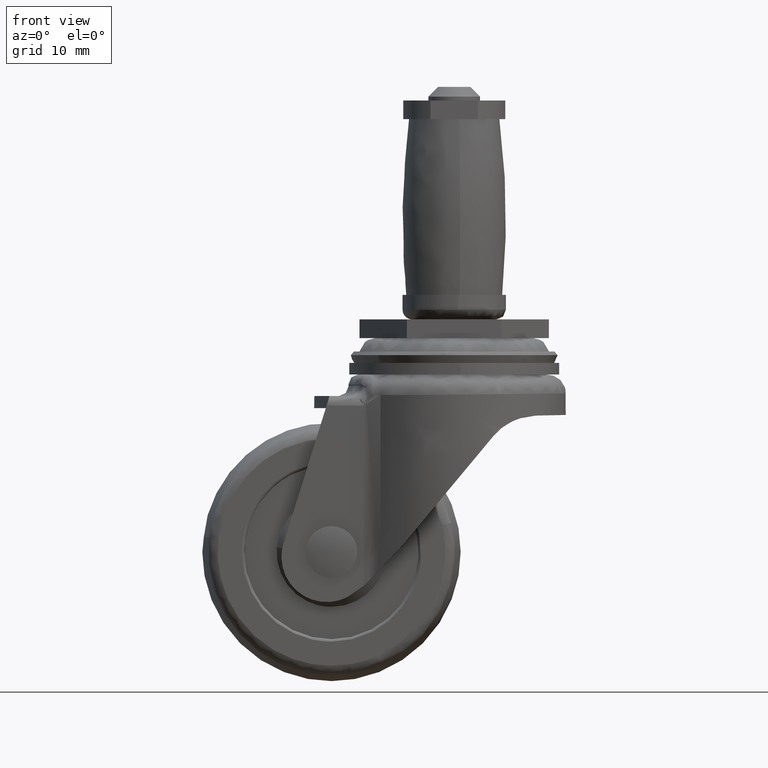
[diagram: clean part render]
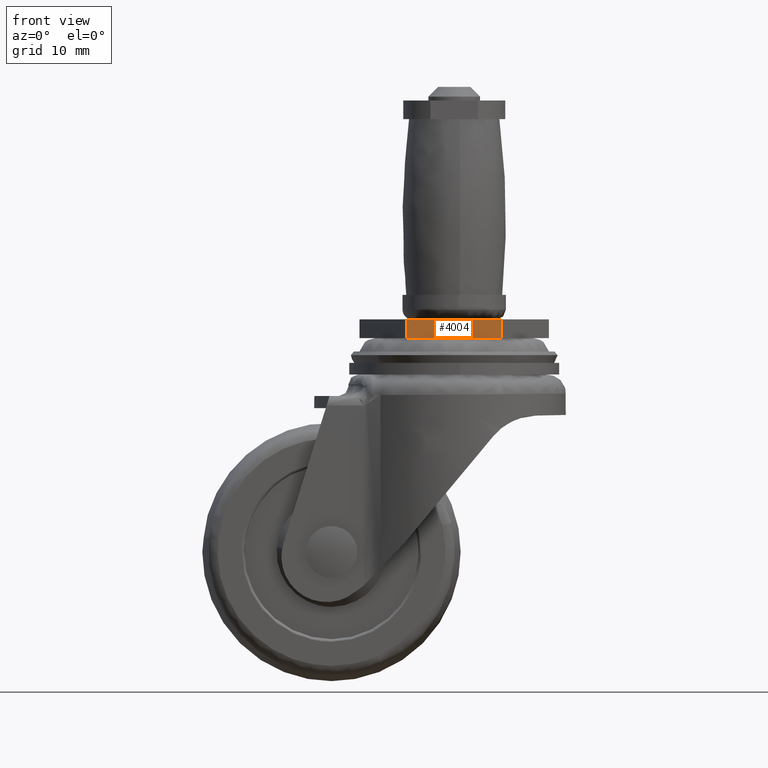
[diagram: same view with one face highlighted and labeled with its STEP entity id]
A machine part, front view. The second image highlights one B-rep face of the part: STEP entity #4004.
In plain terms, the highlighted face is a freeform B-spline surface patch.
Its self-contained STEP definition (entity closure, byte-faithful):
#3954=CARTESIAN_POINT('',(7.330000000000000,-12.695932000000139,0.0));
#3955=VERTEX_POINT('',#3954);
#3961=CARTESIAN_POINT('',(7.330000000000000,-12.695932000000139,-2.899989000000000));
#3962=VERTEX_POINT('',#3961);
#3963=CARTESIAN_POINT('',(7.330000000000000,-12.695932000000139,-2.899989000000000));
#3964=CARTESIAN_POINT('',(7.330000000000000,-12.695932000000139,0.0));
#3965=QUASI_UNIFORM_CURVE('',1,(#3963,#3964),.UNSPECIFIED.,.F.,.U.);
#3966=EDGE_CURVE('',#3962,#3955,#3965,.T.);
#3977=CARTESIAN_POINT('',(-8.062266971586077,-12.695932000000139,0.144854434568461));
#3978=CARTESIAN_POINT('',(-8.062266971586077,-12.695932000000139,-3.044843304928851));
#3979=CARTESIAN_POINT('',(8.062267364797917,-12.695932000000139,0.144854434568461));
#3980=CARTESIAN_POINT('',(8.062267364797917,-12.695932000000139,-3.044843304928851));
#3981=B_SPLINE_SURFACE_WITH_KNOTS('',1,1,((#3977,#3979),(#3978,#3980)),.UNSPECIFIED.,.F.,.F.,.U.,(2,2),(2,2),(0.0,3.189697739497312),(0.0,16.124534336383999),.UNSPECIFIED.);
#3982=CARTESIAN_POINT('',(-7.330000000000000,-12.695932000000139,0.0));
#3983=VERTEX_POINT('',#3982);
#3984=CARTESIAN_POINT('',(-7.330000000000000,-12.695932000000139,0.0));
#3985=CARTESIAN_POINT('',(7.330000000000000,-12.695932000000139,0.0));
#3986=QUASI_UNIFORM_CURVE('',1,(#3984,#3985),.UNSPECIFIED.,.F.,.U.);
#3987=EDGE_CURVE('',#3983,#3955,#3986,.T.);
#3988=ORIENTED_EDGE('',*,*,#3987,.F.);
#3989=CARTESIAN_POINT('',(-7.330000000000000,-12.695932000000139,-2.899989000000000));
#3990=VERTEX_POINT('',#3989);
#3991=CARTESIAN_POINT('',(-7.330000000000000,-12.695932000000139,-2.899989000000000));
#3992=CARTESIAN_POINT('',(-7.330000000000000,-12.695932000000139,0.0));
#3993=QUASI_UNIFORM_CURVE('',1,(#3991,#3992),.UNSPECIFIED.,.F.,.U.);
#3994=EDGE_CURVE('',#3990,#3983,#3993,.T.);
#3995=ORIENTED_EDGE('',*,*,#3994,.F.);
#3996=CARTESIAN_POINT('',(-7.330000000000000,-12.695932000000139,-2.899989000000000));
#3997=CARTESIAN_POINT('',(7.330000000000000,-12.695932000000139,-2.899989000000000));
#3998=QUASI_UNIFORM_CURVE('',1,(#3996,#3997),.UNSPECIFIED.,.F.,.U.);
#3999=EDGE_CURVE('',#3990,#3962,#3998,.T.);
#4000=ORIENTED_EDGE('',*,*,#3999,.T.);
#4001=ORIENTED_EDGE('',*,*,#3966,.T.);
#4002=EDGE_LOOP('',(#3988,#3995,#4000,#4001));
#4003=FACE_OUTER_BOUND('',#4002,.T.);
#4004=ADVANCED_FACE('',(#4003),#3981,.T.);